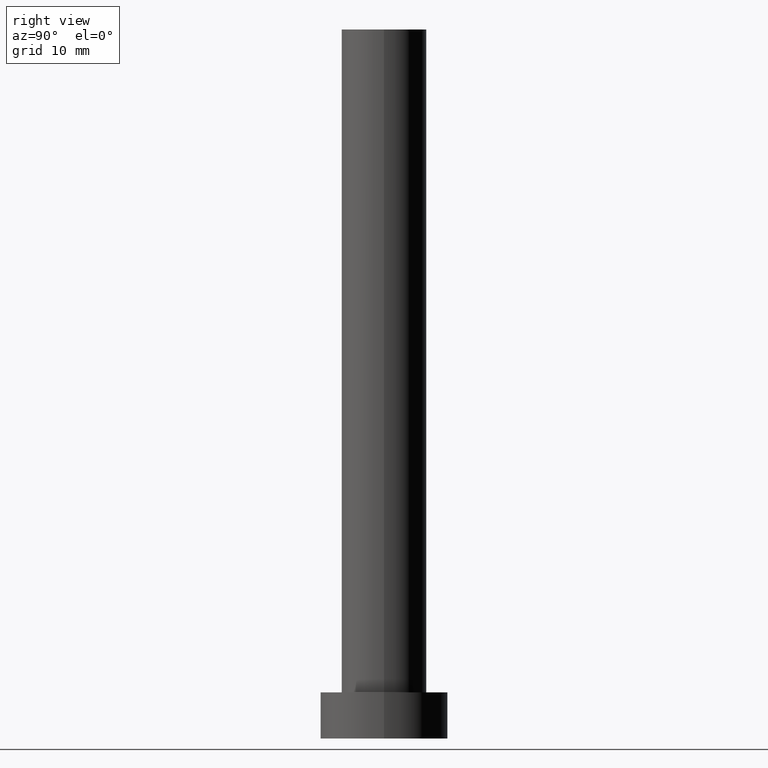
[diagram: clean part render]
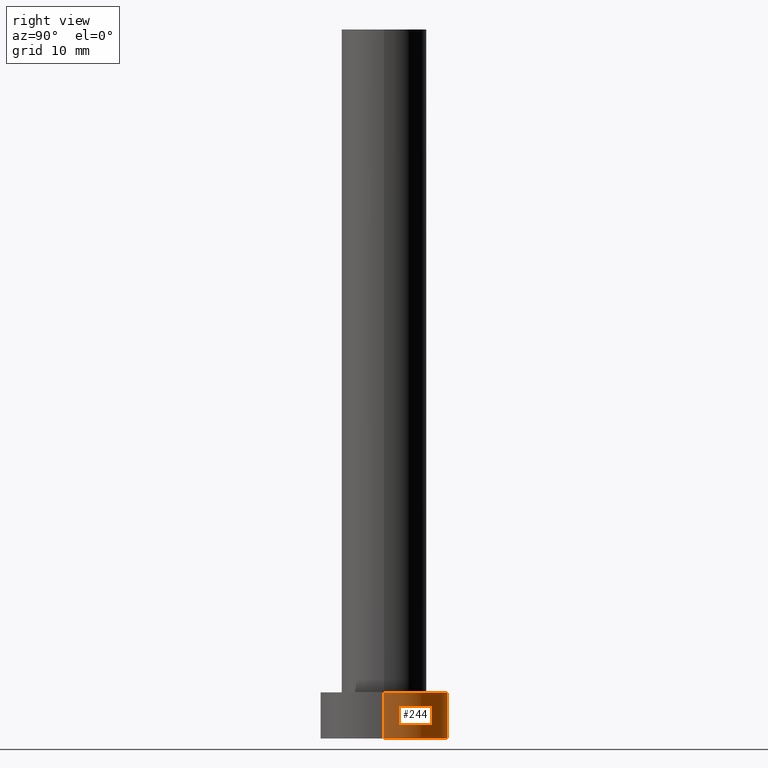
[diagram: same view with one face highlighted and labeled with its STEP entity id]
A machine part, right view. The second image highlights one B-rep face of the part: STEP entity #244.
In plain terms, the highlighted cylindrical surface (partial cylindrical patch) has radius 9 mm, axis along (-0, -0, -1).
Its self-contained STEP definition (entity closure, byte-faithful):
#1 = CARTESIAN_POINT ( 'NONE',  ( 0.000000000000000000, 0.000000000000000000, 0.000000000000000000 ) ) ;
#2 = CARTESIAN_POINT ( 'NONE',  ( 9.000000000000000000, 1.102182119232617517E-15, 6.500000000000000000 ) ) ;
#3 = EDGE_CURVE ( 'NONE', #230, #40, #189, .T. ) ;
#7 = ORIENTED_EDGE ( 'NONE', *, *, #171, .T. ) ;
#13 = LINE ( 'NONE', #250, #249 ) ;
#16 = CARTESIAN_POINT ( 'NONE',  ( 9.000000000000000000, 1.102182119232617517E-15, 6.500000000000000000 ) ) ;
#29 = EDGE_CURVE ( 'NONE', #230, #187, #153, .T. ) ;
#30 = CYLINDRICAL_SURFACE ( 'NONE', #133, 9.000000000000000000 ) ;
#40 = VERTEX_POINT ( 'NONE', #184 ) ;
#45 = EDGE_CURVE ( 'NONE', #187, #75, #13, .T. ) ;
#49 = CARTESIAN_POINT ( 'NONE',  ( -9.000000000000000000, 0.000000000000000000, 6.500000000000000000 ) ) ;
#58 = CIRCLE ( 'NONE', #86, 9.000000000000000000 ) ;
#65 = DIRECTION ( 'NONE',  ( 1.000000000000000000, 0.000000000000000000, 0.000000000000000000 ) ) ;
#73 = ORIENTED_EDGE ( 'NONE', *, *, #29, .F. ) ;
#75 = VERTEX_POINT ( 'NONE', #111 ) ;
#77 = DIRECTION ( 'NONE',  ( -0.000000000000000000, -0.000000000000000000, -1.000000000000000000 ) ) ;
#83 = DIRECTION ( 'NONE',  ( 0.000000000000000000, 0.000000000000000000, 1.000000000000000000 ) ) ;
#86 = AXIS2_PLACEMENT_3D ( 'NONE', #1, #83, #65 ) ;
#98 = DIRECTION ( 'NONE',  ( 0.000000000000000000, 0.000000000000000000, 1.000000000000000000 ) ) ;
#104 = CARTESIAN_POINT ( 'NONE',  ( 0.000000000000000000, 0.000000000000000000, 6.500000000000000000 ) ) ;
#110 = DIRECTION ( 'NONE',  ( 1.000000000000000000, 0.000000000000000000, 0.000000000000000000 ) ) ;
#111 = CARTESIAN_POINT ( 'NONE',  ( -9.000000000000000000, 0.000000000000000000, 0.000000000000000000 ) ) ;
#112 = EDGE_LOOP ( 'NONE', ( #73, #211, #7, #142 ) ) ;
#120 = AXIS2_PLACEMENT_3D ( 'NONE', #148, #98, #110 ) ;
#122 = FACE_OUTER_BOUND ( 'NONE', #112, .T. ) ;
#133 = AXIS2_PLACEMENT_3D ( 'NONE', #104, #242, #177 ) ;
#142 = ORIENTED_EDGE ( 'NONE', *, *, #45, .F. ) ;
#148 = CARTESIAN_POINT ( 'NONE',  ( 0.000000000000000000, 0.000000000000000000, 6.500000000000000000 ) ) ;
#153 = CIRCLE ( 'NONE', #120, 9.000000000000000000 ) ;
#171 = EDGE_CURVE ( 'NONE', #40, #75, #58, .T. ) ;
#177 = DIRECTION ( 'NONE',  ( -1.000000000000000000, 0.000000000000000000, 0.000000000000000000 ) ) ;
#180 = VECTOR ( 'NONE', #226, 1000.000000000000000 ) ;
#184 = CARTESIAN_POINT ( 'NONE',  ( 9.000000000000000000, 1.102182119232617517E-15, 0.000000000000000000 ) ) ;
#187 = VERTEX_POINT ( 'NONE', #49 ) ;
#189 = LINE ( 'NONE', #16, #180 ) ;
#211 = ORIENTED_EDGE ( 'NONE', *, *, #3, .T. ) ;
#226 = DIRECTION ( 'NONE',  ( -0.000000000000000000, -0.000000000000000000, -1.000000000000000000 ) ) ;
#230 = VERTEX_POINT ( 'NONE', #2 ) ;
#242 = DIRECTION ( 'NONE',  ( -0.000000000000000000, -0.000000000000000000, -1.000000000000000000 ) ) ;
#244 = ADVANCED_FACE ( 'NONE', ( #122 ), #30, .T. ) ;
#249 = VECTOR ( 'NONE', #77, 1000.000000000000000 ) ;
#250 = CARTESIAN_POINT ( 'NONE',  ( -9.000000000000000000, 0.000000000000000000, 6.500000000000000000 ) ) ;